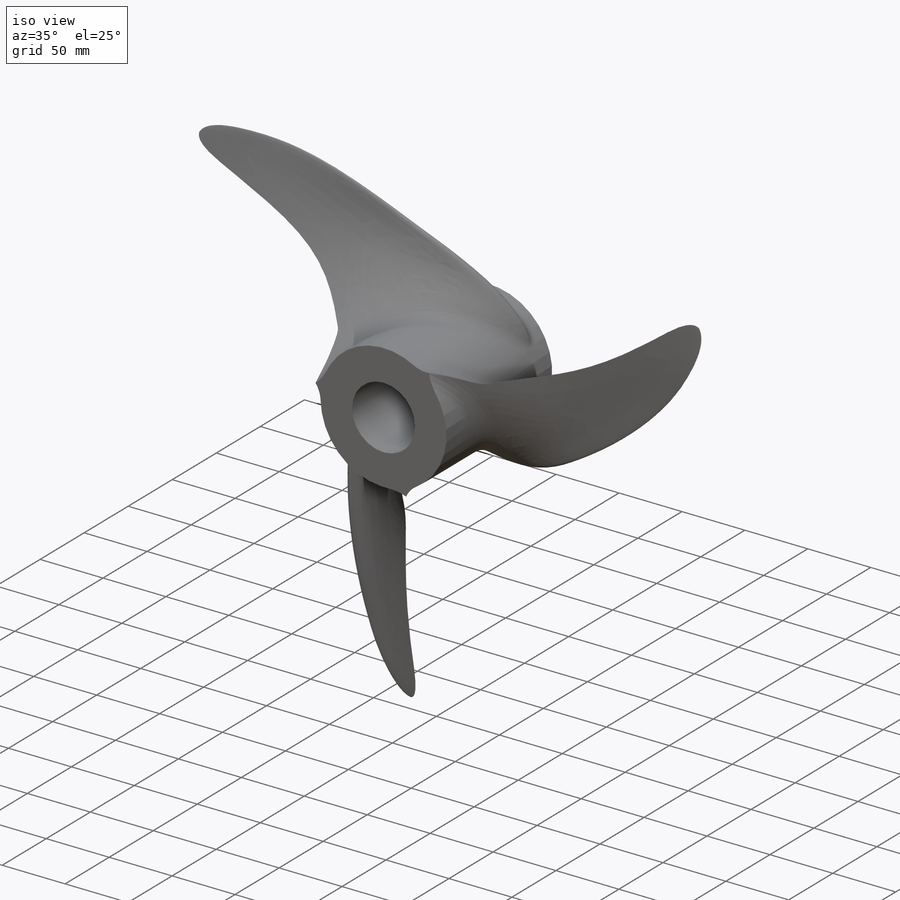
[diagram: iso view]
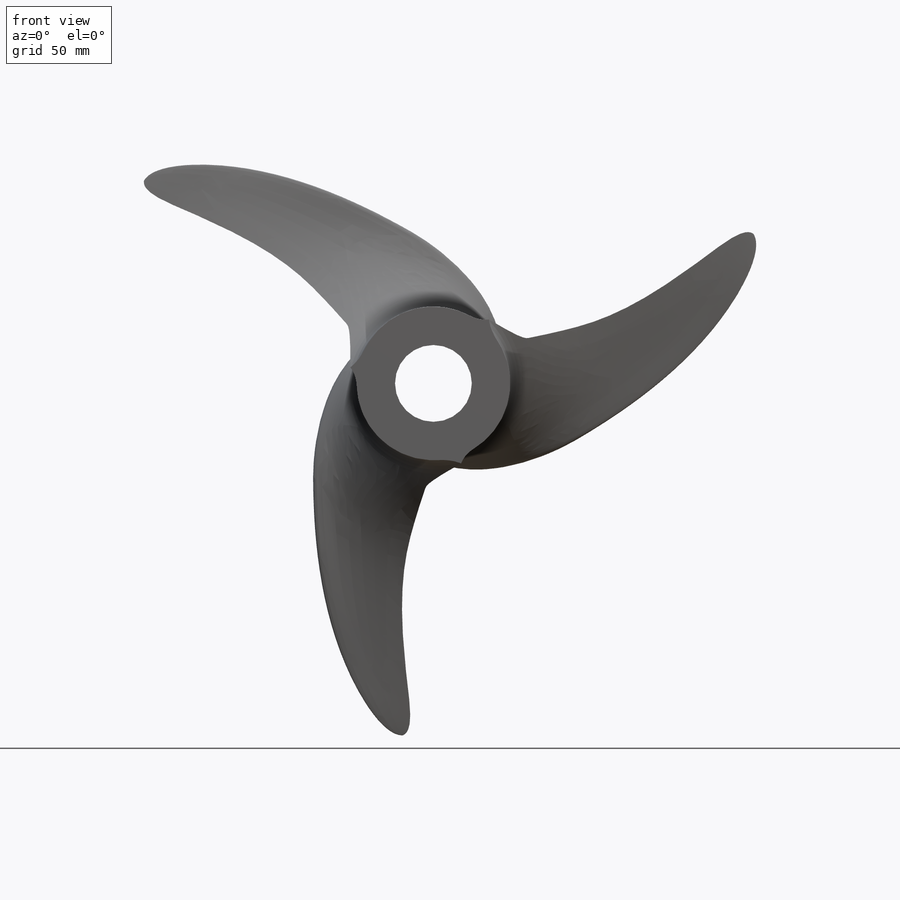
[diagram: front view]
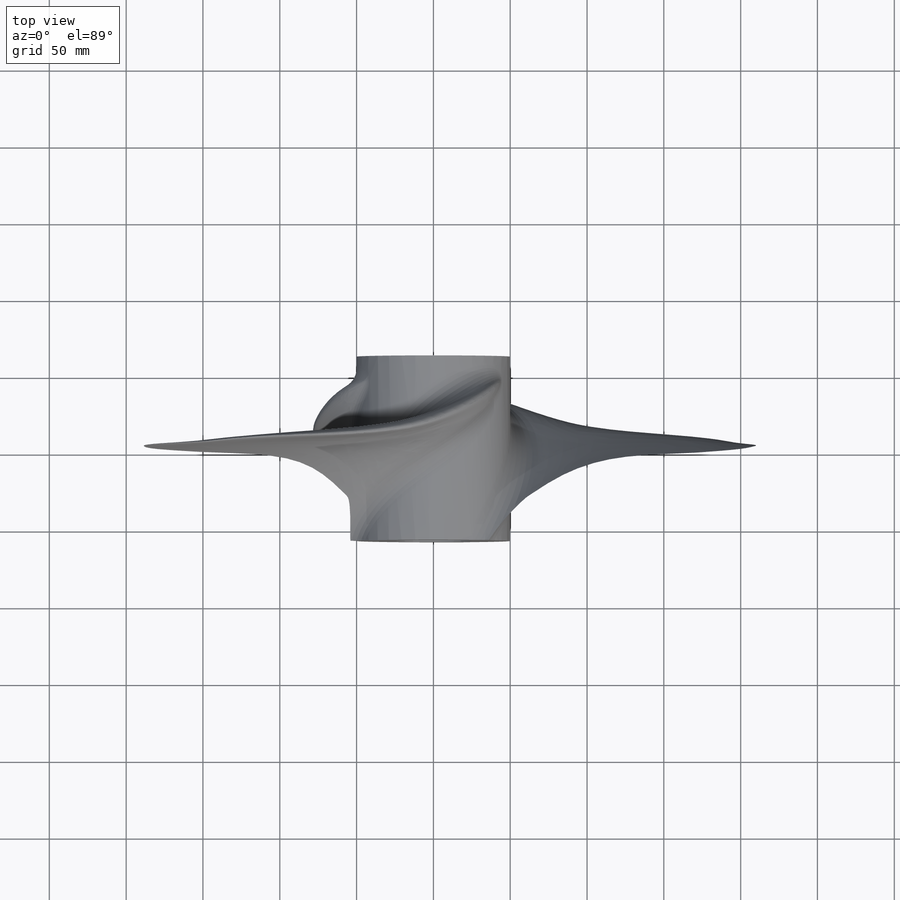
[diagram: top view]
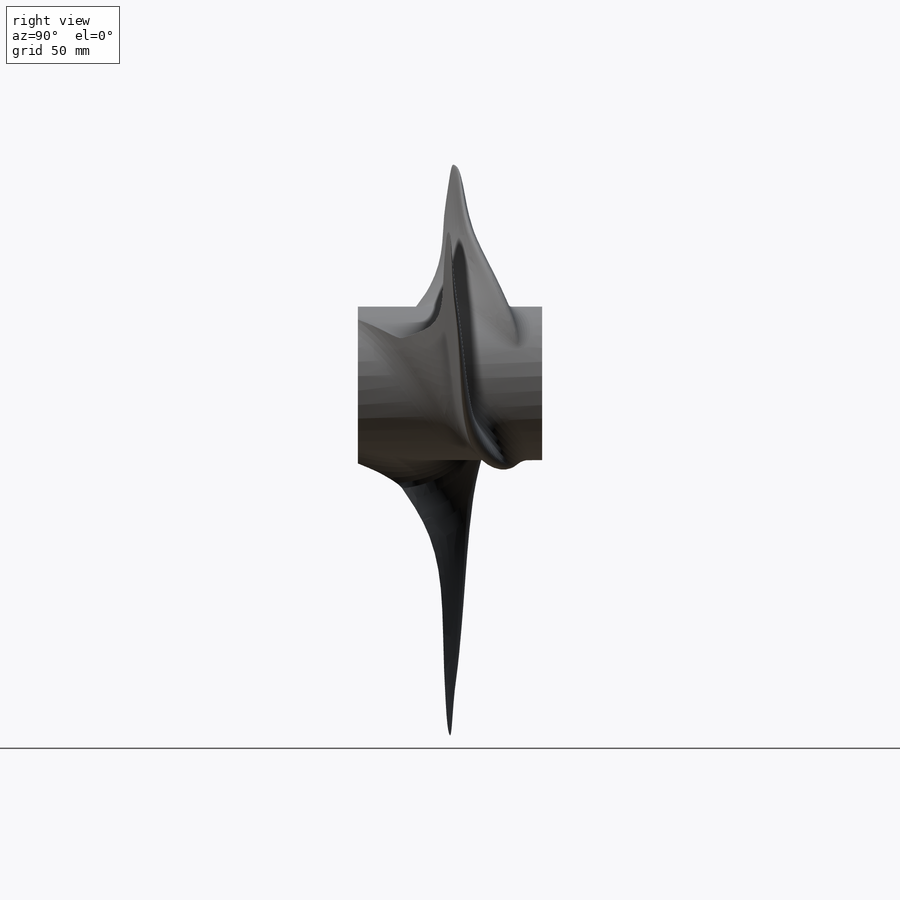
[diagram: right view]
SOLIDWORKS PART (.sldprt)
format: sldprt  version: not decoded by parser v0  size: 4,890,624 bytes
history: native  units: mm
features: sketch x10, plane x3, extrude x2, material x1, fillet x1, delete_body x1, pattern_circular x1, boolean_combine x1 (+12 scaffold rows collapsed)
feature tree (32):
  scaffold x12  (default folders/planes/origin — collapsed)
  material  "6061 Alloy"
  sketch  "Sketch8"  dims[c1.D1=~121.577279mm c2.D1=50.0deg c3.D1=~80.793775mm c4.D1=30.0deg c4.D2=~218.126469mm c5.D2=50.0deg c5.D3=200.0mm c5.D4=100.0mm c5.D5=50.0mm c5.D6=230.0mm c5.D7=230.0mm c6.D7=5.0deg c7.D7=50.0mm c8.D7=55.0deg]
  plane  "Plane3"
  plane  "Plane1"
  plane  "Plane2"
  sketch  "Sketch1"  dims[D1=100.0mm D2=50.0mm]
  extrude  "cylinder hub"  Depth=120mm
  sketch  "root foil"  dims[c1.D1=~137.159737mm c2.D1=40.0deg]
  sketch  "Sketch3"  dims[c1.D1=200.0mm c2.D1=100.0mm c2.D5=10.0mm c2.D6=1.0mm c2.D7=5.0mm]
  sketch  "middle foil"  dims[c1.D1=~79.956782mm c2.D1=20.0deg]
  sketch  "Sketch10"
  extrude  "cylinder 3"  Depth=100mm
  sketch  "tip foil"  dims[c1.D1=~11.697512mm c2.D1=10.0deg]
  sketch  "3DSketch8"
  sketch  "trailing edge"
  sketch  "leading edge"
  fillet  "Fillet1"  Radius=15mm
  delete_body  "flush cylinders"
  pattern_circular  "CirPattern3"  Count=3 Angle=360deg
  boolean_combine  "Combine1"
decode coverage: 10 of 16 modeling features carry decoded parameters
note: ~ marks probable driven/reference dimensions
note: suppression state not decoded; provenance and decode notes live in map.json
